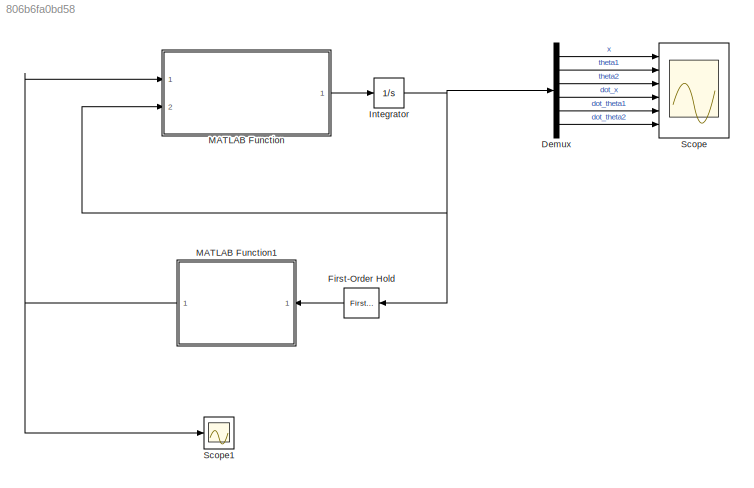
MODEL slx_806b6fa0bd58
KIND model
CONFIG AbsTol = auto
CONFIG EnableMultiTasking = off
CONFIG FixedStep = auto
CONFIG MaxStep = auto
CONFIG MinStep = auto
CONFIG RelTol = 1e-3
CONFIG SampleTimeConstraint = Unconstrained
CONFIG Solver = VariableStepAuto
CONFIG SolverName = VariableStepAuto
CONFIG StartTime = 0.0
CONFIG StopTime = 5
BLOCK [Demux] Demux
  DisplayOption = bar
  Outputs = 6
  Ports = [1, 6]
BLOCK [Reference] First-Order Hold  REF=simulink/Discrete/First-Order
Hold
  DisableCoverage = on
  Ports = [1, 1]
  SourceBlock = simulink/Discrete/First-Order\nHold
  SourceType = First-Order Hold
BLOCK [Integrator] Integrator
  InitialCondition = [0 deg2rad(1) 0 0 0 0]
  Ports = [1, 1]
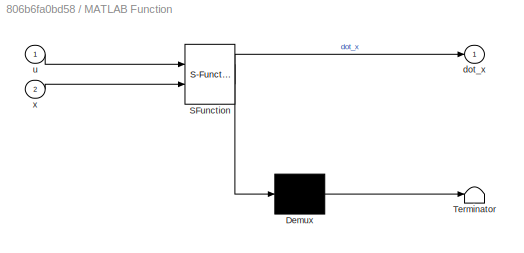
BLOCK [SubSystem] MATLAB Function
  ErrorFcn = Stateflow.Translate.translate
  PermitHierarchicalResolution = ExplicitOnly
  Ports = [2, 1]
  RequestExecContextInheritance = off
  SFBlockType = MATLAB Function
  TreatAsAtomicUnit = on
  Variant = off
BLOCK [Demux] MATLAB Function/ Demux 
  Outputs = 1
  Ports = [1, 1]
BLOCK [S-Function] MATLAB Function/ SFunction 
  EnableBusSupport = on
  FunctionName = sf_sfun
  PortCounts = [2 2]
  Ports = [2, 2]
  SFcnIsStateOwnerBlock = off
  SFunctionDeploymentMode = off
  Tag = Stateflow S-Function DIP 2
BLOCK [Terminator] MATLAB Function/ Terminator 
BLOCK [Outport] MATLAB Function/dot_x
  IconDisplay = Port number
BLOCK [Inport] MATLAB Function/u
  IconDisplay = Port number
BLOCK [Inport] MATLAB Function/x
  IconDisplay = Port number
  Port = 2
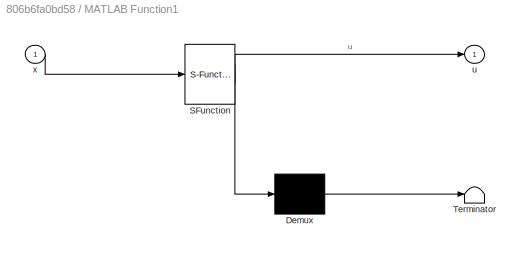
BLOCK [SubSystem] MATLAB Function1
  ErrorFcn = Stateflow.Translate.translate
  PermitHierarchicalResolution = ExplicitOnly
  Ports = [1, 1]
  RequestExecContextInheritance = off
  SFBlockType = MATLAB Function
  TreatAsAtomicUnit = on
  Variant = off
BLOCK [Demux] MATLAB Function1/ Demux 
  Outputs = 1
  Ports = [1, 1]
BLOCK [S-Function] MATLAB Function1/ SFunction 
  EnableBusSupport = on
  FunctionName = sf_sfun
  PortCounts = [1 2]
  Ports = [1, 2]
  SFcnIsStateOwnerBlock = off
  SFunctionDeploymentMode = off
  Tag = Stateflow S-Function DIP 1
BLOCK [Terminator] MATLAB Function1/ Terminator 
BLOCK [Outport] MATLAB Function1/u
  IconDisplay = Port number
BLOCK [Inport] MATLAB Function1/x
  IconDisplay = Port number
BLOCK [Scope] Scope
  NumInputPorts = 6
  Ports = [6]
  ScopeSpecificationString = Simulink.scopes.TimeScopeBlockCfg('CurrentConfiguration', extmgr.ConfigurationSet(extmgr.Configuration('Core','General UI',true),extmgr.Configuration('Core','Source UI',true),extmgr.Configuration('Sources','WiredSimulink',true),extmgr.Configuration('Visuals','Time Domain',true,'SerializedDisplays',{struct('MinYLimReal','-0.06283','MaxYLimReal','0.02521','YLabelReal','','MinYLimMag','0.00000','MaxY...<+4743ch>
BLOCK [Scope] Scope1
  NumInputPorts = 1
  Ports = [1]
  ScopeSpecificationString = Simulink.scopes.TimeScopeBlockCfg('CurrentConfiguration', extmgr.ConfigurationSet(extmgr.Configuration('Core','General UI',true),extmgr.Configuration('Core','Source UI',true),extmgr.Configuration('Sources','WiredSimulink',true,'DataLoggingVariableName','ScopeData1'),extmgr.Configuration('Visuals','Time Domain',true,'SerializedDisplays',{struct('MinYLimReal','-13.21032','MaxYLimReal','15.96876','YL...<+1429ch>
LINE Demux:1 -> Scope:1
LINE Demux:2 -> Scope:2
LINE Demux:3 -> Scope:3
LINE Demux:4 -> Scope:4
LINE Demux:5 -> Scope:5
LINE Demux:6 -> Scope:6
LINE First-Order Hold:1 -> MATLAB Function1:1
NET Integrator:1 -> Demux:1, First-Order Hold:1, MATLAB Function:2
NET MATLAB Function1:1 -> MATLAB Function:1, Scope1:1
LINE MATLAB Function:1 -> Integrator:1
note: NET lines group one-source signal fan-out (src -> all destinations, sorted); 1:1 wires keep LINE
CHART MATLAB Function1 states=1 transitions=1
  STATE_LABEL 'eML_blk_kernel()'
  STATE_LABEL "SCRIPT:\nfunction u  = SDRE_simulink(x)\n\nu = 0;\n\nD = zeros(3);\nC = zeros(3);\nG = zeros(3);\n\n\ncoder.extrinsic('dare');\n\n% System parameters\n\nm0 = 1.5;  % kg\nm1 = 0.5;  % kg\nm2 = 0.75; % kg\nL1 = 0.5;  % m\nL2 = 0.75; % m\n\nQ  = diag([5 50 50 20 700 700]);\nR  = 1;\n\ng = 9.81;\n\n% Compupted coefficients\n\nd1 = m0 + m1 + m2;\nd2 = (0.5 * m1 + m2) * L1;\nd3 = 0.5 * m2 * L2;\nd4 = (1/3 * m1 + m2) * L1^2;\nd5 = 0.5...<+1051ch>"
CHART MATLAB Function states=1 transitions=1
  STATE_LABEL 'eML_blk_kernel()'
  STATE_LABEL 'SCRIPT:\nfunction dot_x  = SystemDerivatives_simulink(u, x)\n\n% System parameters\n\nm0 = 1.5;  % kg\nm1 = 0.5;  % kg\nm2 = 0.75; % kg\nL1 = 0.5;  % m\nL2 = 0.75; % m\n\ndrag1 = 0.005; % N m s\ndrag2 = 0.005; % N m s\n\n\ng = 9.81;\n\n% Compupted coefficients\n\nd1 = m0 + m1 + m2;\nd2 = (0.5 * m1 + m2) * L1;\nd3 = 0.5 * m2 * L2;\nd4 = (1/3 * m1 + m2) * L1^2;\nd5 = 0.5 * m2 * L1 * L2;\nd6 = 1/3 * m2 * L2^2;\nf1 = (0.5 * m...<+903ch>'
